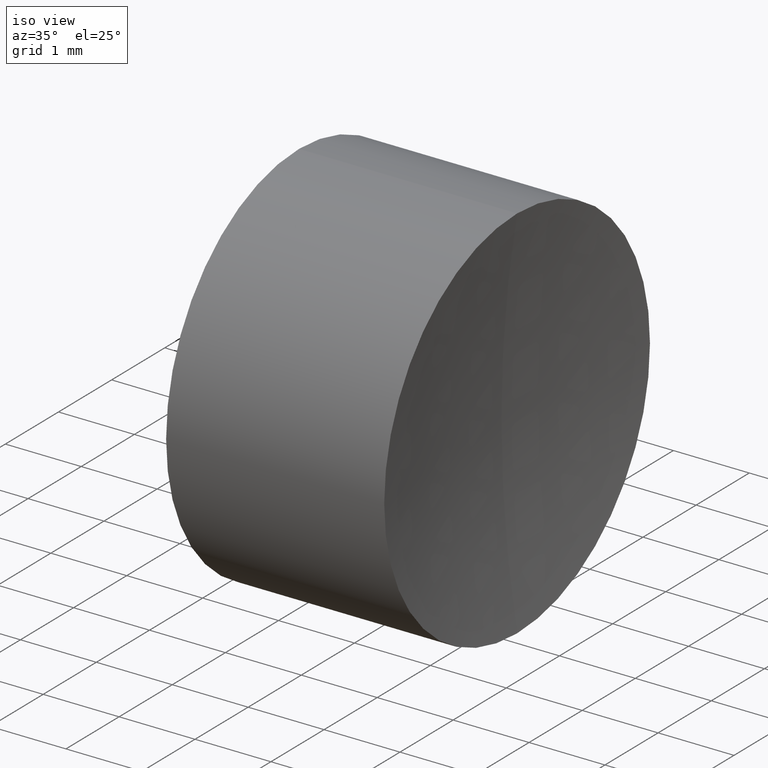
[diagram: clean part render]
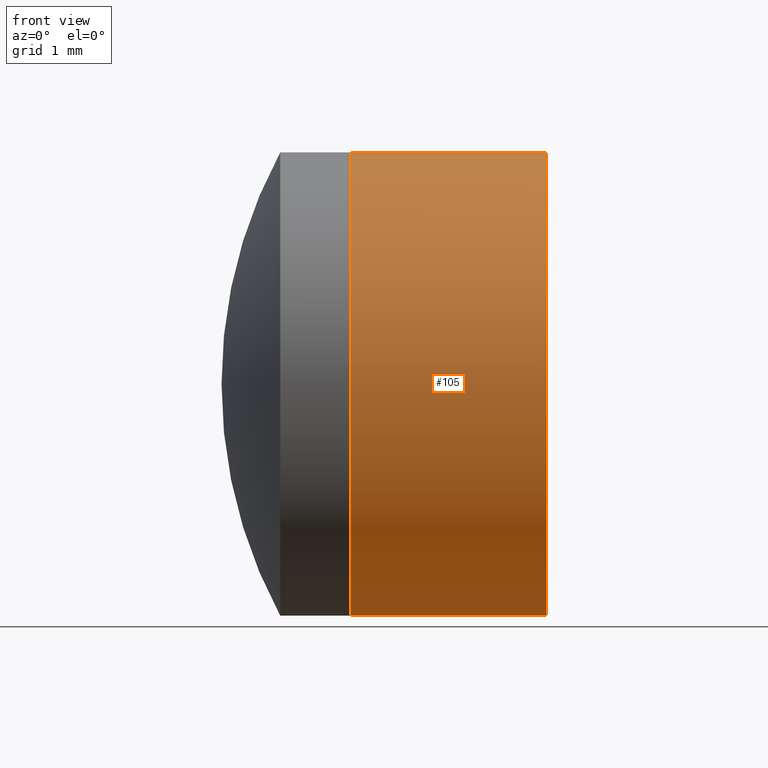
[diagram: tour spotlight — one face highlighted and labeled with its STEP entity id]
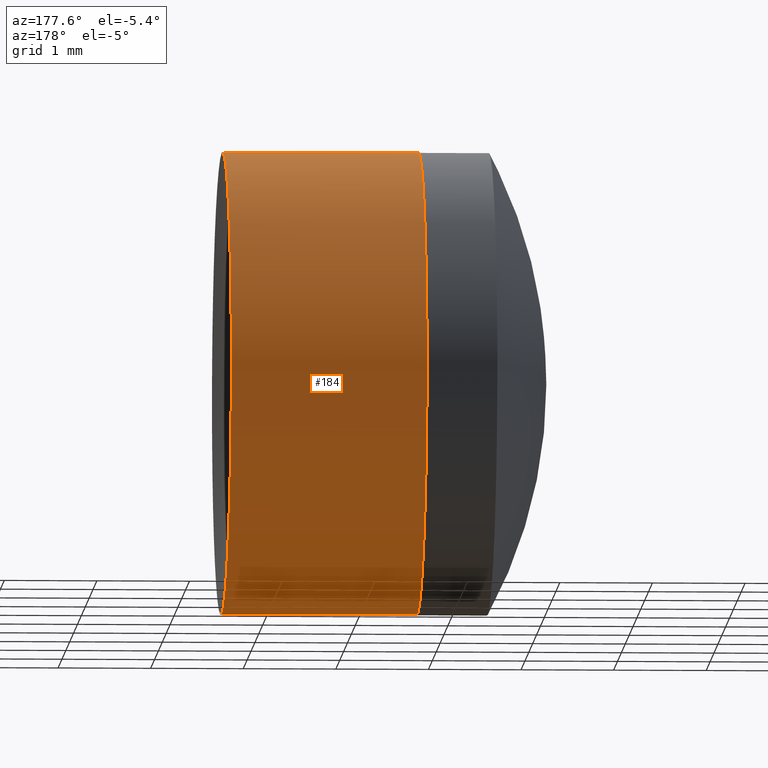
[diagram: tour spotlight — one face highlighted and labeled with its STEP entity id]
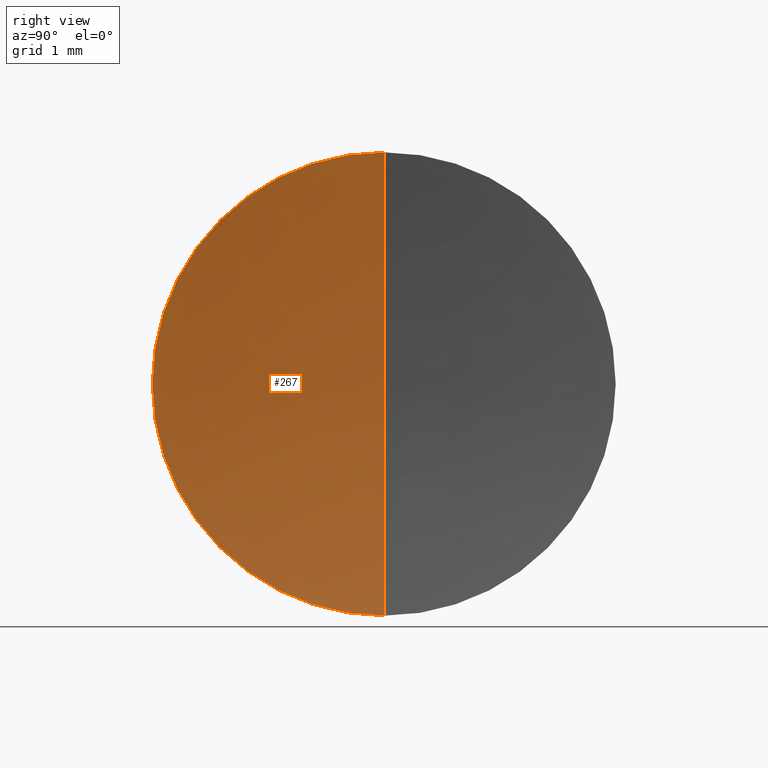
[diagram: tour spotlight — one face highlighted and labeled with its STEP entity id]
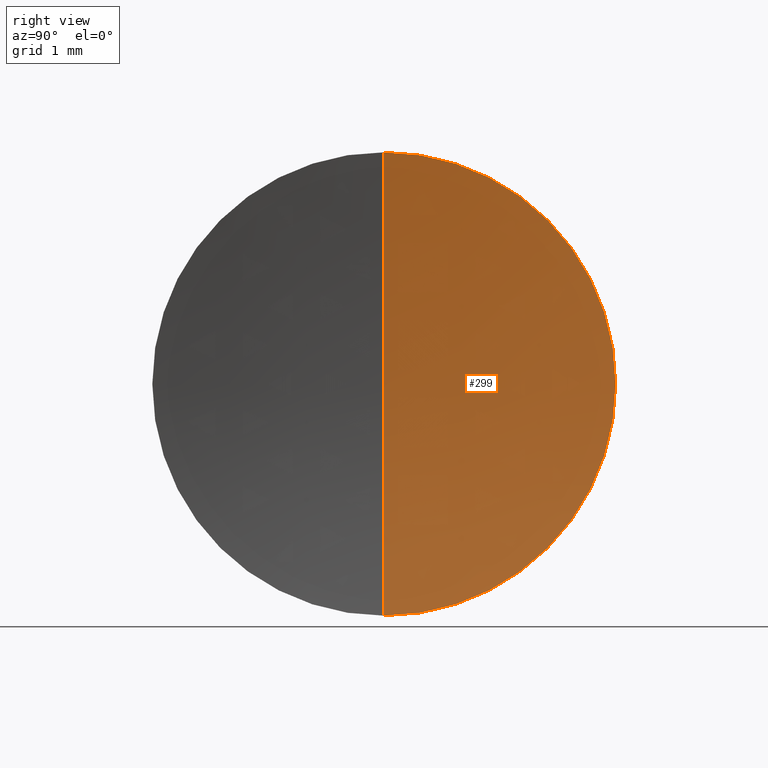
[diagram: tour spotlight — one face highlighted and labeled with its STEP entity id]
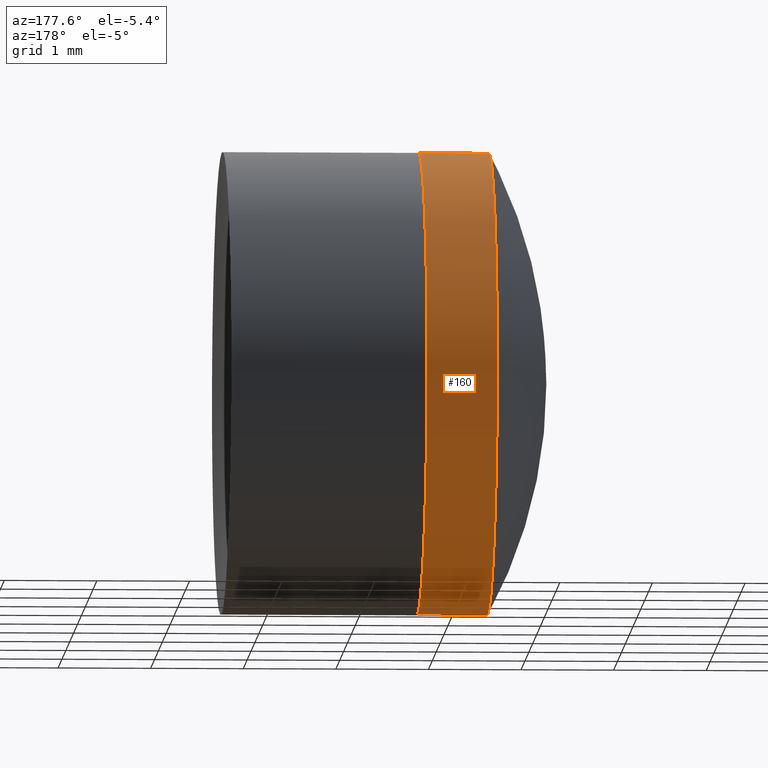
[diagram: tour spotlight — one face highlighted and labeled with its STEP entity id]
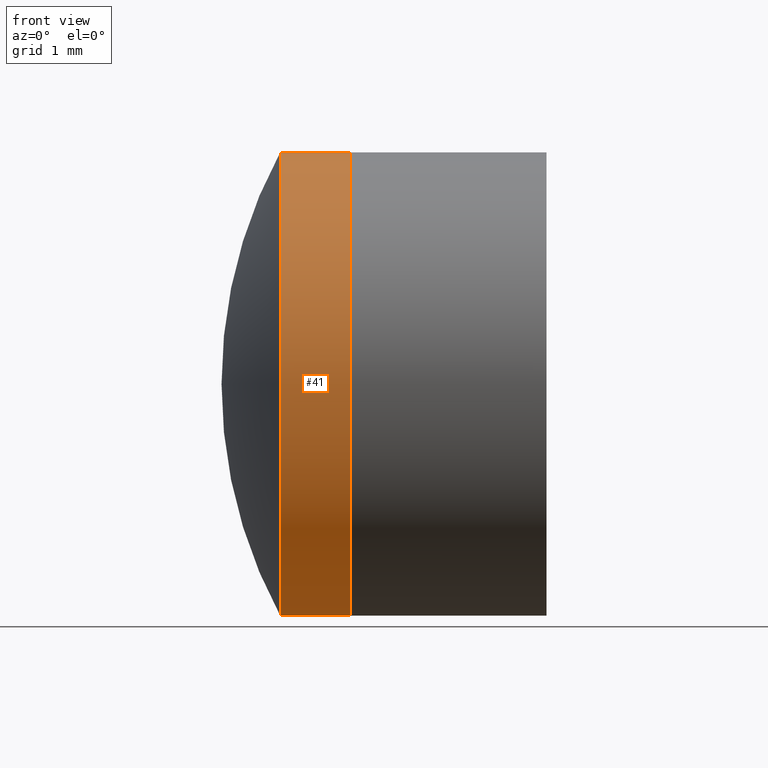
[diagram: tour spotlight — one face highlighted and labeled with its STEP entity id]
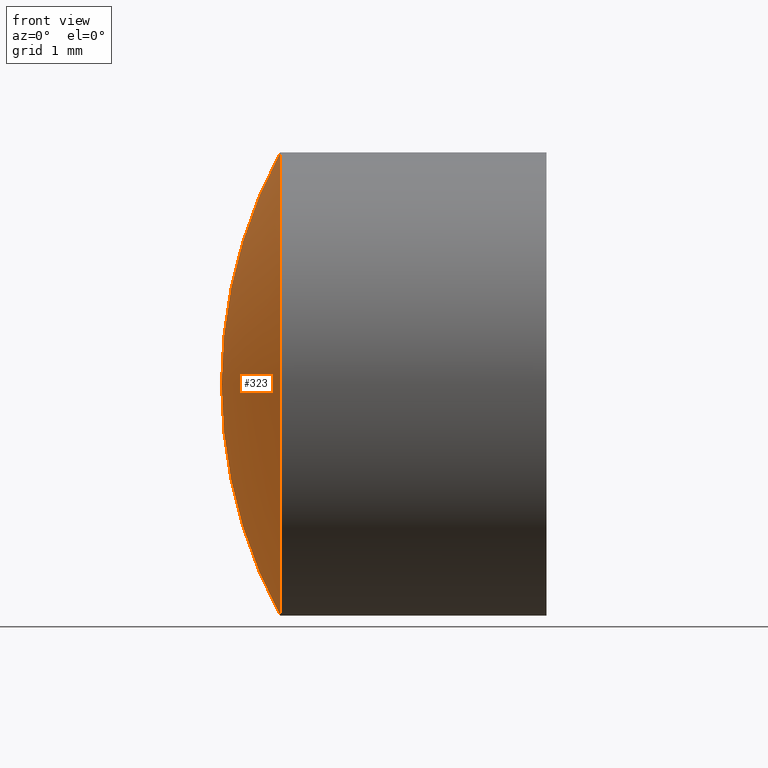
[diagram: tour spotlight — one face highlighted and labeled with its STEP entity id]
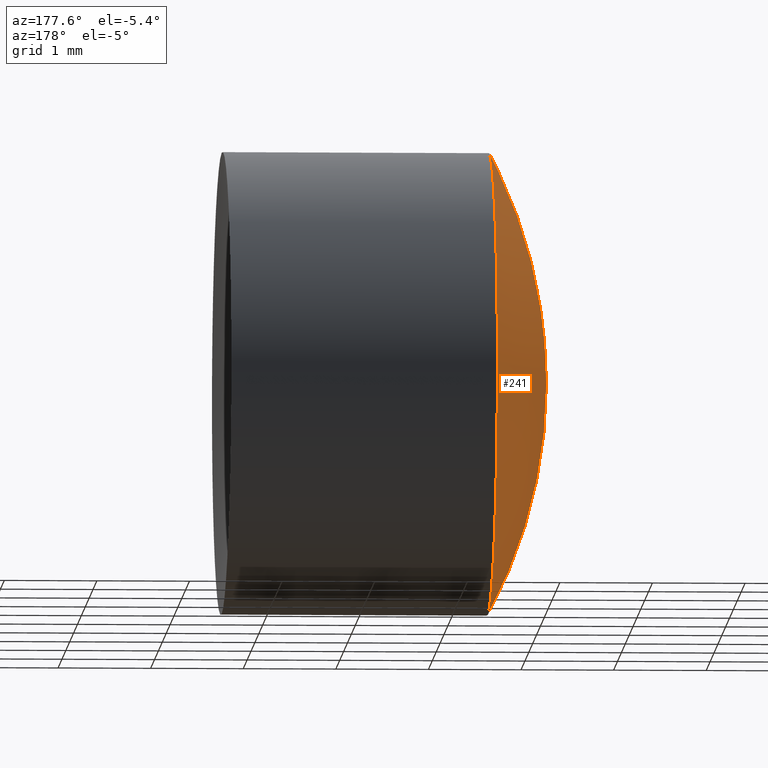
[diagram: tour spotlight — one face highlighted and labeled with its STEP entity id]
A machine part: a face-by-face anatomy tour. The part has 12 B-rep faces; the first image is the clean iso view, then the 8 largest visible faces are spotlighted one at a time (largest first), each with its STEP entity span.

Face 1 — front view, entity #105. In plain terms, the highlighted cylindrical surface (partial cylindrical patch) has radius 2.5 mm, axis along (-1, -0, -0).
Definition (entity closure, byte-faithful):
#1 = ORIENTED_EDGE ( 'NONE', *, *, #223, .F. ) ;
#23 = CARTESIAN_POINT ( 'NONE',  ( 5.442473336270686500, 0.0000000000000000000, -2.499999999999990200 ) ) ;
#25 = VERTEX_POINT ( 'NONE', #301 ) ;
#29 = DIRECTION ( 'NONE',  ( -1.000000000000000000, -0.0000000000000000000, -0.0000000000000000000 ) ) ;
#51 = EDGE_CURVE ( 'NONE', #169, #25, #343, .T. ) ;
#58 = CARTESIAN_POINT ( 'NONE',  ( 3.328800613064654400, 0.0000000000000000000, -2.499999999999997800 ) ) ;
#60 = DIRECTION ( 'NONE',  ( -1.000000000000000000, -0.0000000000000000000, -0.0000000000000000000 ) ) ;
#62 = CARTESIAN_POINT ( 'NONE',  ( -0.5519199926577972300, 0.0000000000000000000, 2.499999999999997800 ) ) ;
#78 = CYLINDRICAL_SURFACE ( 'NONE', #81, 2.499999999999997800 ) ;
#81 = AXIS2_PLACEMENT_3D ( 'NONE', #268, #60, #256 ) ;
#105 = ADVANCED_FACE ( 'NONE', ( #213 ), #78, .T. ) ;
#123 = AXIS2_PLACEMENT_3D ( 'NONE', #336, #148, #316 ) ;
#136 = DIRECTION ( 'NONE',  ( -1.000000000000000000, -0.0000000000000000000, -0.0000000000000000000 ) ) ;
#148 = DIRECTION ( 'NONE',  ( -1.000000000000000000, -0.0000000000000000000, -0.0000000000000000000 ) ) ;
#169 = VERTEX_POINT ( 'NONE', #252 ) ;
#178 = CARTESIAN_POINT ( 'NONE',  ( -0.5519199926577972300, 3.061616997868380700E-016, -2.499999999999997800 ) ) ;
#182 = DIRECTION ( 'NONE',  ( -1.000000000000000000, -0.0000000000000000000, -0.0000000000000000000 ) ) ;
#190 = EDGE_LOOP ( 'NONE', ( #1, #347, #240, #271 ) ) ;
#210 = VECTOR ( 'NONE', #29, 1000.000000000000000 ) ;
#213 = FACE_OUTER_BOUND ( 'NONE', #190, .T. ) ;
#222 = VERTEX_POINT ( 'NONE', #58 ) ;
#223 = EDGE_CURVE ( 'NONE', #308, #222, #325, .T. ) ;
#240 = ORIENTED_EDGE ( 'NONE', *, *, #51, .T. ) ;
#252 = CARTESIAN_POINT ( 'NONE',  ( 5.442473336270686500, -3.061616997868370300E-016, 2.499999999999990200 ) ) ;
#256 = DIRECTION ( 'NONE',  ( 0.0000000000000000000, 0.0000000000000000000, 1.000000000000000000 ) ) ;
#268 = CARTESIAN_POINT ( 'NONE',  ( -0.5519199926577972300, 0.0000000000000000000, 0.0000000000000000000 ) ) ;
#271 = ORIENTED_EDGE ( 'NONE', *, *, #291, .F. ) ;
#272 = CIRCLE ( 'NONE', #123, 2.499999999999998200 ) ;
#286 = CIRCLE ( 'NONE', #324, 2.499999999999997800 ) ;
#291 = EDGE_CURVE ( 'NONE', #222, #25, #286, .T. ) ;
#301 = CARTESIAN_POINT ( 'NONE',  ( 3.328800613064654400, -3.061616997868380700E-016, 2.499999999999997800 ) ) ;
#308 = VERTEX_POINT ( 'NONE', #23 ) ;
#314 = VECTOR ( 'NONE', #182, 1000.000000000000000 ) ;
#316 = DIRECTION ( 'NONE',  ( 0.0000000000000000000, 0.0000000000000000000, 1.000000000000000000 ) ) ;
#324 = AXIS2_PLACEMENT_3D ( 'NONE', #337, #136, #329 ) ;
#325 = LINE ( 'NONE', #178, #210 ) ;
#329 = DIRECTION ( 'NONE',  ( 0.0000000000000000000, 0.0000000000000000000, 1.000000000000000000 ) ) ;
#330 = EDGE_CURVE ( 'NONE', #308, #169, #272, .T. ) ;
#336 = CARTESIAN_POINT ( 'NONE',  ( 5.442473336270686500, 0.0000000000000000000, 0.0000000000000000000 ) ) ;
#337 = CARTESIAN_POINT ( 'NONE',  ( 3.328800613064654400, 0.0000000000000000000, 0.0000000000000000000 ) ) ;
#343 = LINE ( 'NONE', #62, #314 ) ;
#347 = ORIENTED_EDGE ( 'NONE', *, *, #330, .T. ) ;

Face 2 — auxiliary view, entity #184. In plain terms, the highlighted cylindrical surface (partial cylindrical patch) has radius 2.5 mm, axis along (-1, -0, -0).
Definition (entity closure, byte-faithful):
#23 = CARTESIAN_POINT ( 'NONE',  ( 5.442473336270686500, 0.0000000000000000000, -2.499999999999990200 ) ) ;
#25 = VERTEX_POINT ( 'NONE', #301 ) ;
#29 = DIRECTION ( 'NONE',  ( -1.000000000000000000, -0.0000000000000000000, -0.0000000000000000000 ) ) ;
#33 = AXIS2_PLACEMENT_3D ( 'NONE', #173, #282, #68 ) ;
#38 = ORIENTED_EDGE ( 'NONE', *, *, #223, .T. ) ;
#51 = EDGE_CURVE ( 'NONE', #169, #25, #343, .T. ) ;
#58 = CARTESIAN_POINT ( 'NONE',  ( 3.328800613064654400, 0.0000000000000000000, -2.499999999999997800 ) ) ;
#59 = CYLINDRICAL_SURFACE ( 'NONE', #203, 2.499999999999997800 ) ;
#62 = CARTESIAN_POINT ( 'NONE',  ( -0.5519199926577972300, 0.0000000000000000000, 2.499999999999997800 ) ) ;
#68 = DIRECTION ( 'NONE',  ( 0.0000000000000000000, 0.0000000000000000000, 1.000000000000000000 ) ) ;
#71 = FACE_OUTER_BOUND ( 'NONE', #166, .T. ) ;
#134 = CIRCLE ( 'NONE', #224, 2.499999999999998200 ) ;
#142 = DIRECTION ( 'NONE',  ( -1.000000000000000000, -0.0000000000000000000, -0.0000000000000000000 ) ) ;
#143 = DIRECTION ( 'NONE',  ( 0.0000000000000000000, 0.0000000000000000000, 1.000000000000000000 ) ) ;
#144 = CIRCLE ( 'NONE', #33, 2.499999999999997800 ) ;
#146 = CARTESIAN_POINT ( 'NONE',  ( 5.442473336270686500, 0.0000000000000000000, 0.0000000000000000000 ) ) ;
#149 = CARTESIAN_POINT ( 'NONE',  ( -0.5519199926577972300, 0.0000000000000000000, 0.0000000000000000000 ) ) ;
#156 = ORIENTED_EDGE ( 'NONE', *, *, #217, .F. ) ;
#158 = DIRECTION ( 'NONE',  ( 0.0000000000000000000, 0.0000000000000000000, 1.000000000000000000 ) ) ;
#165 = ORIENTED_EDGE ( 'NONE', *, *, #183, .T. ) ;
#166 = EDGE_LOOP ( 'NONE', ( #165, #38, #156, #219 ) ) ;
#169 = VERTEX_POINT ( 'NONE', #252 ) ;
#173 = CARTESIAN_POINT ( 'NONE',  ( 3.328800613064654400, 0.0000000000000000000, 0.0000000000000000000 ) ) ;
#178 = CARTESIAN_POINT ( 'NONE',  ( -0.5519199926577972300, 3.061616997868380700E-016, -2.499999999999997800 ) ) ;
#182 = DIRECTION ( 'NONE',  ( -1.000000000000000000, -0.0000000000000000000, -0.0000000000000000000 ) ) ;
#183 = EDGE_CURVE ( 'NONE', #169, #308, #134, .T. ) ;
#184 = ADVANCED_FACE ( 'NONE', ( #71 ), #59, .T. ) ;
#203 = AXIS2_PLACEMENT_3D ( 'NONE', #149, #284, #158 ) ;
#210 = VECTOR ( 'NONE', #29, 1000.000000000000000 ) ;
#217 = EDGE_CURVE ( 'NONE', #25, #222, #144, .T. ) ;
#219 = ORIENTED_EDGE ( 'NONE', *, *, #51, .F. ) ;
#222 = VERTEX_POINT ( 'NONE', #58 ) ;
#223 = EDGE_CURVE ( 'NONE', #308, #222, #325, .T. ) ;
#224 = AXIS2_PLACEMENT_3D ( 'NONE', #146, #142, #143 ) ;
#252 = CARTESIAN_POINT ( 'NONE',  ( 5.442473336270686500, -3.061616997868370300E-016, 2.499999999999990200 ) ) ;
#282 = DIRECTION ( 'NONE',  ( -1.000000000000000000, -0.0000000000000000000, -0.0000000000000000000 ) ) ;
#284 = DIRECTION ( 'NONE',  ( -1.000000000000000000, -0.0000000000000000000, -0.0000000000000000000 ) ) ;
#301 = CARTESIAN_POINT ( 'NONE',  ( 3.328800613064654400, -3.061616997868380700E-016, 2.499999999999997800 ) ) ;
#308 = VERTEX_POINT ( 'NONE', #23 ) ;
#314 = VECTOR ( 'NONE', #182, 1000.000000000000000 ) ;
#325 = LINE ( 'NONE', #178, #210 ) ;
#343 = LINE ( 'NONE', #62, #314 ) ;

Face 3 — right view, entity #267. In plain terms, the highlighted spherical surface has radius 15.24 mm.
Definition (entity closure, byte-faithful):
#6 = CARTESIAN_POINT ( 'NONE',  ( 20.47602248475854500, 0.0000000000000000000, 0.0000000000000000000 ) ) ;
#19 = DIRECTION ( 'NONE',  ( 0.0000000000000000000, 0.0000000000000000000, -1.000000000000000000 ) ) ;
#23 = CARTESIAN_POINT ( 'NONE',  ( 5.442473336270686500, 0.0000000000000000000, -2.499999999999990200 ) ) ;
#32 = CARTESIAN_POINT ( 'NONE',  ( 20.47602248475854500, 0.0000000000000000000, 0.0000000000000000000 ) ) ;
#40 = DIRECTION ( 'NONE',  ( -0.0000000000000000000, -1.000000000000000000, -0.0000000000000000000 ) ) ;
#57 = EDGE_LOOP ( 'NONE', ( #180, #111, #250 ) ) ;
#79 = EDGE_CURVE ( 'NONE', #169, #86, #305, .T. ) ;
#86 = VERTEX_POINT ( 'NONE', #333 ) ;
#108 = CIRCLE ( 'NONE', #276, 15.23999999999999800 ) ;
#111 = ORIENTED_EDGE ( 'NONE', *, *, #330, .F. ) ;
#123 = AXIS2_PLACEMENT_3D ( 'NONE', #336, #148, #316 ) ;
#148 = DIRECTION ( 'NONE',  ( -1.000000000000000000, -0.0000000000000000000, -0.0000000000000000000 ) ) ;
#159 = DIRECTION ( 'NONE',  ( 0.0000000000000000000, 0.0000000000000000000, 1.000000000000000000 ) ) ;
#161 = CARTESIAN_POINT ( 'NONE',  ( 20.47602248475854500, 0.0000000000000000000, 0.0000000000000000000 ) ) ;
#164 = DIRECTION ( 'NONE',  ( 0.0000000000000000000, 1.000000000000000000, -0.0000000000000000000 ) ) ;
#169 = VERTEX_POINT ( 'NONE', #252 ) ;
#174 = AXIS2_PLACEMENT_3D ( 'NONE', #6, #40, #19 ) ;
#176 = EDGE_CURVE ( 'NONE', #308, #86, #108, .T. ) ;
#180 = ORIENTED_EDGE ( 'NONE', *, *, #79, .F. ) ;
#200 = DIRECTION ( 'NONE',  ( 0.0000000000000000000, 1.224646799147353000E-016, -1.000000000000000000 ) ) ;
#235 = SPHERICAL_SURFACE ( 'NONE', #174, 15.23999999999999800 ) ;
#250 = ORIENTED_EDGE ( 'NONE', *, *, #176, .T. ) ;
#252 = CARTESIAN_POINT ( 'NONE',  ( 5.442473336270686500, -3.061616997868370300E-016, 2.499999999999990200 ) ) ;
#265 = AXIS2_PLACEMENT_3D ( 'NONE', #32, #313, #200 ) ;
#267 = ADVANCED_FACE ( 'NONE', ( #280 ), #235, .F. ) ;
#272 = CIRCLE ( 'NONE', #123, 2.499999999999998200 ) ;
#276 = AXIS2_PLACEMENT_3D ( 'NONE', #161, #164, #159 ) ;
#280 = FACE_OUTER_BOUND ( 'NONE', #57, .T. ) ;
#305 = CIRCLE ( 'NONE', #265, 15.23999999999999800 ) ;
#308 = VERTEX_POINT ( 'NONE', #23 ) ;
#313 = DIRECTION ( 'NONE',  ( 0.0000000000000000000, -1.000000000000000000, -1.224646799147353200E-016 ) ) ;
#316 = DIRECTION ( 'NONE',  ( 0.0000000000000000000, 0.0000000000000000000, 1.000000000000000000 ) ) ;
#330 = EDGE_CURVE ( 'NONE', #308, #169, #272, .T. ) ;
#333 = CARTESIAN_POINT ( 'NONE',  ( 5.236022484758547300, 0.0000000000000000000, -9.331808609502829000E-016 ) ) ;
#336 = CARTESIAN_POINT ( 'NONE',  ( 5.442473336270686500, 0.0000000000000000000, 0.0000000000000000000 ) ) ;

Face 4 — right view, entity #299. In plain terms, the highlighted spherical surface has radius 15.24 mm.
Definition (entity closure, byte-faithful):
#23 = CARTESIAN_POINT ( 'NONE',  ( 5.442473336270686500, 0.0000000000000000000, -2.499999999999990200 ) ) ;
#27 = ORIENTED_EDGE ( 'NONE', *, *, #79, .T. ) ;
#32 = CARTESIAN_POINT ( 'NONE',  ( 20.47602248475854500, 0.0000000000000000000, 0.0000000000000000000 ) ) ;
#52 = ORIENTED_EDGE ( 'NONE', *, *, #176, .F. ) ;
#79 = EDGE_CURVE ( 'NONE', #169, #86, #305, .T. ) ;
#83 = DIRECTION ( 'NONE',  ( 0.0000000000000000000, 0.0000000000000000000, -1.000000000000000000 ) ) ;
#86 = VERTEX_POINT ( 'NONE', #333 ) ;
#108 = CIRCLE ( 'NONE', #276, 15.23999999999999800 ) ;
#115 = AXIS2_PLACEMENT_3D ( 'NONE', #239, #249, #83 ) ;
#134 = CIRCLE ( 'NONE', #224, 2.499999999999998200 ) ;
#142 = DIRECTION ( 'NONE',  ( -1.000000000000000000, -0.0000000000000000000, -0.0000000000000000000 ) ) ;
#143 = DIRECTION ( 'NONE',  ( 0.0000000000000000000, 0.0000000000000000000, 1.000000000000000000 ) ) ;
#146 = CARTESIAN_POINT ( 'NONE',  ( 5.442473336270686500, 0.0000000000000000000, 0.0000000000000000000 ) ) ;
#159 = DIRECTION ( 'NONE',  ( 0.0000000000000000000, 0.0000000000000000000, 1.000000000000000000 ) ) ;
#161 = CARTESIAN_POINT ( 'NONE',  ( 20.47602248475854500, 0.0000000000000000000, 0.0000000000000000000 ) ) ;
#164 = DIRECTION ( 'NONE',  ( 0.0000000000000000000, 1.000000000000000000, -0.0000000000000000000 ) ) ;
#169 = VERTEX_POINT ( 'NONE', #252 ) ;
#176 = EDGE_CURVE ( 'NONE', #308, #86, #108, .T. ) ;
#183 = EDGE_CURVE ( 'NONE', #169, #308, #134, .T. ) ;
#200 = DIRECTION ( 'NONE',  ( 0.0000000000000000000, 1.224646799147353000E-016, -1.000000000000000000 ) ) ;
#224 = AXIS2_PLACEMENT_3D ( 'NONE', #146, #142, #143 ) ;
#239 = CARTESIAN_POINT ( 'NONE',  ( 20.47602248475854500, 0.0000000000000000000, 0.0000000000000000000 ) ) ;
#249 = DIRECTION ( 'NONE',  ( -0.0000000000000000000, -1.000000000000000000, -0.0000000000000000000 ) ) ;
#252 = CARTESIAN_POINT ( 'NONE',  ( 5.442473336270686500, -3.061616997868370300E-016, 2.499999999999990200 ) ) ;
#265 = AXIS2_PLACEMENT_3D ( 'NONE', #32, #313, #200 ) ;
#276 = AXIS2_PLACEMENT_3D ( 'NONE', #161, #164, #159 ) ;
#299 = ADVANCED_FACE ( 'NONE', ( #340 ), #345, .F. ) ;
#303 = ORIENTED_EDGE ( 'NONE', *, *, #183, .F. ) ;
#305 = CIRCLE ( 'NONE', #265, 15.23999999999999800 ) ;
#308 = VERTEX_POINT ( 'NONE', #23 ) ;
#313 = DIRECTION ( 'NONE',  ( 0.0000000000000000000, -1.000000000000000000, -1.224646799147353200E-016 ) ) ;
#333 = CARTESIAN_POINT ( 'NONE',  ( 5.236022484758547300, 0.0000000000000000000, -9.331808609502829000E-016 ) ) ;
#340 = FACE_OUTER_BOUND ( 'NONE', #346, .T. ) ;
#345 = SPHERICAL_SURFACE ( 'NONE', #115, 15.23999999999999800 ) ;
#346 = EDGE_LOOP ( 'NONE', ( #303, #27, #52 ) ) ;

Face 5 — auxiliary view, entity #160. In plain terms, the highlighted cylindrical surface (partial cylindrical patch) has radius 2.5 mm, axis along (-1, -0, -0).
Definition (entity closure, byte-faithful):
#2 = EDGE_CURVE ( 'NONE', #73, #293, #130, .T. ) ;
#3 = CYLINDRICAL_SURFACE ( 'NONE', #247, 2.500000000000000000 ) ;
#5 = EDGE_LOOP ( 'NONE', ( #278, #67, #94, #84 ) ) ;
#16 = FACE_OUTER_BOUND ( 'NONE', #5, .T. ) ;
#22 = AXIS2_PLACEMENT_3D ( 'NONE', #93, #66, #188 ) ;
#36 = CARTESIAN_POINT ( 'NONE',  ( 2.569476156603698800, 0.0000000000000000000, 2.500000000000000400 ) ) ;
#53 = CARTESIAN_POINT ( 'NONE',  ( 2.569476156603698800, 3.061616997868383100E-016, -2.500000000000000400 ) ) ;
#65 = DIRECTION ( 'NONE',  ( -1.000000000000000000, -0.0000000000000000000, -0.0000000000000000000 ) ) ;
#66 = DIRECTION ( 'NONE',  ( -1.000000000000000000, -0.0000000000000000000, -0.0000000000000000000 ) ) ;
#67 = ORIENTED_EDGE ( 'NONE', *, *, #2, .T. ) ;
#69 = CARTESIAN_POINT ( 'NONE',  ( 3.328800613064653900, 3.061616997868383100E-016, -2.500000000000000000 ) ) ;
#72 = AXIS2_PLACEMENT_3D ( 'NONE', #261, #65, #238 ) ;
#73 = VERTEX_POINT ( 'NONE', #69 ) ;
#75 = EDGE_CURVE ( 'NONE', #327, #293, #80, .T. ) ;
#80 = CIRCLE ( 'NONE', #22, 2.500000000000000000 ) ;
#84 = ORIENTED_EDGE ( 'NONE', *, *, #309, .F. ) ;
#93 = CARTESIAN_POINT ( 'NONE',  ( 2.569476156603698800, 0.0000000000000000000, 0.0000000000000000000 ) ) ;
#94 = ORIENTED_EDGE ( 'NONE', *, *, #75, .F. ) ;
#112 = VECTOR ( 'NONE', #154, 1000.000000000000000 ) ;
#130 = LINE ( 'NONE', #211, #277 ) ;
#154 = DIRECTION ( 'NONE',  ( -1.000000000000000000, -0.0000000000000000000, -0.0000000000000000000 ) ) ;
#155 = DIRECTION ( 'NONE',  ( -1.000000000000000000, -0.0000000000000000000, -0.0000000000000000000 ) ) ;
#160 = ADVANCED_FACE ( 'NONE', ( #16 ), #3, .T. ) ;
#188 = DIRECTION ( 'NONE',  ( 0.0000000000000000000, 0.0000000000000000000, 1.000000000000000000 ) ) ;
#191 = LINE ( 'NONE', #195, #112 ) ;
#195 = CARTESIAN_POINT ( 'NONE',  ( -0.8160621761658039000, 0.0000000000000000000, 2.500000000000000000 ) ) ;
#211 = CARTESIAN_POINT ( 'NONE',  ( -0.8160621761658039000, 3.061616997868383100E-016, -2.500000000000000000 ) ) ;
#229 = DIRECTION ( 'NONE',  ( -1.000000000000000000, -0.0000000000000000000, -0.0000000000000000000 ) ) ;
#238 = DIRECTION ( 'NONE',  ( 0.0000000000000000000, 0.0000000000000000000, 1.000000000000000000 ) ) ;
#247 = AXIS2_PLACEMENT_3D ( 'NONE', #289, #229, #260 ) ;
#255 = CIRCLE ( 'NONE', #72, 2.500000000000000000 ) ;
#260 = DIRECTION ( 'NONE',  ( 0.0000000000000000000, 0.0000000000000000000, 1.000000000000000000 ) ) ;
#261 = CARTESIAN_POINT ( 'NONE',  ( 3.328800613064653900, 0.0000000000000000000, 0.0000000000000000000 ) ) ;
#263 = CARTESIAN_POINT ( 'NONE',  ( 3.328800613064653900, 0.0000000000000000000, 2.500000000000000000 ) ) ;
#277 = VECTOR ( 'NONE', #155, 1000.000000000000000 ) ;
#278 = ORIENTED_EDGE ( 'NONE', *, *, #300, .T. ) ;
#283 = VERTEX_POINT ( 'NONE', #263 ) ;
#289 = CARTESIAN_POINT ( 'NONE',  ( -0.8160621761658039000, 0.0000000000000000000, 0.0000000000000000000 ) ) ;
#293 = VERTEX_POINT ( 'NONE', #53 ) ;
#300 = EDGE_CURVE ( 'NONE', #283, #73, #255, .T. ) ;
#309 = EDGE_CURVE ( 'NONE', #283, #327, #191, .T. ) ;
#327 = VERTEX_POINT ( 'NONE', #36 ) ;

Face 6 — front view, entity #41. In plain terms, the highlighted cylindrical surface (partial cylindrical patch) has radius 2.5 mm, axis along (-1, -0, -0).
Definition (entity closure, byte-faithful):
#2 = EDGE_CURVE ( 'NONE', #73, #293, #130, .T. ) ;
#13 = CYLINDRICAL_SURFACE ( 'NONE', #331, 2.500000000000000000 ) ;
#15 = CARTESIAN_POINT ( 'NONE',  ( 2.569476156603698800, 0.0000000000000000000, 0.0000000000000000000 ) ) ;
#36 = CARTESIAN_POINT ( 'NONE',  ( 2.569476156603698800, 0.0000000000000000000, 2.500000000000000400 ) ) ;
#41 = ADVANCED_FACE ( 'NONE', ( #77 ), #13, .T. ) ;
#53 = CARTESIAN_POINT ( 'NONE',  ( 2.569476156603698800, 3.061616997868383100E-016, -2.500000000000000400 ) ) ;
#69 = CARTESIAN_POINT ( 'NONE',  ( 3.328800613064653900, 3.061616997868383100E-016, -2.500000000000000000 ) ) ;
#73 = VERTEX_POINT ( 'NONE', #69 ) ;
#77 = FACE_OUTER_BOUND ( 'NONE', #332, .T. ) ;
#99 = ORIENTED_EDGE ( 'NONE', *, *, #192, .T. ) ;
#112 = VECTOR ( 'NONE', #154, 1000.000000000000000 ) ;
#114 = DIRECTION ( 'NONE',  ( 0.0000000000000000000, 0.0000000000000000000, 1.000000000000000000 ) ) ;
#120 = CARTESIAN_POINT ( 'NONE',  ( 3.328800613064653900, 0.0000000000000000000, 0.0000000000000000000 ) ) ;
#122 = DIRECTION ( 'NONE',  ( -1.000000000000000000, -0.0000000000000000000, -0.0000000000000000000 ) ) ;
#130 = LINE ( 'NONE', #211, #277 ) ;
#150 = DIRECTION ( 'NONE',  ( 0.0000000000000000000, 0.0000000000000000000, 1.000000000000000000 ) ) ;
#154 = DIRECTION ( 'NONE',  ( -1.000000000000000000, -0.0000000000000000000, -0.0000000000000000000 ) ) ;
#155 = DIRECTION ( 'NONE',  ( -1.000000000000000000, -0.0000000000000000000, -0.0000000000000000000 ) ) ;
#177 = DIRECTION ( 'NONE',  ( -1.000000000000000000, -0.0000000000000000000, -0.0000000000000000000 ) ) ;
#191 = LINE ( 'NONE', #195, #112 ) ;
#192 = EDGE_CURVE ( 'NONE', #73, #283, #335, .T. ) ;
#195 = CARTESIAN_POINT ( 'NONE',  ( -0.8160621761658039000, 0.0000000000000000000, 2.500000000000000000 ) ) ;
#196 = ORIENTED_EDGE ( 'NONE', *, *, #326, .F. ) ;
#207 = ORIENTED_EDGE ( 'NONE', *, *, #309, .T. ) ;
#211 = CARTESIAN_POINT ( 'NONE',  ( -0.8160621761658039000, 3.061616997868383100E-016, -2.500000000000000000 ) ) ;
#216 = CIRCLE ( 'NONE', #318, 2.500000000000000000 ) ;
#230 = AXIS2_PLACEMENT_3D ( 'NONE', #120, #122, #114 ) ;
#231 = DIRECTION ( 'NONE',  ( 0.0000000000000000000, 0.0000000000000000000, 1.000000000000000000 ) ) ;
#263 = CARTESIAN_POINT ( 'NONE',  ( 3.328800613064653900, 0.0000000000000000000, 2.500000000000000000 ) ) ;
#277 = VECTOR ( 'NONE', #155, 1000.000000000000000 ) ;
#283 = VERTEX_POINT ( 'NONE', #263 ) ;
#292 = DIRECTION ( 'NONE',  ( -1.000000000000000000, -0.0000000000000000000, -0.0000000000000000000 ) ) ;
#293 = VERTEX_POINT ( 'NONE', #53 ) ;
#296 = CARTESIAN_POINT ( 'NONE',  ( -0.8160621761658039000, 0.0000000000000000000, 0.0000000000000000000 ) ) ;
#298 = ORIENTED_EDGE ( 'NONE', *, *, #2, .F. ) ;
#309 = EDGE_CURVE ( 'NONE', #283, #327, #191, .T. ) ;
#318 = AXIS2_PLACEMENT_3D ( 'NONE', #15, #177, #150 ) ;
#326 = EDGE_CURVE ( 'NONE', #293, #327, #216, .T. ) ;
#327 = VERTEX_POINT ( 'NONE', #36 ) ;
#331 = AXIS2_PLACEMENT_3D ( 'NONE', #296, #292, #231 ) ;
#332 = EDGE_LOOP ( 'NONE', ( #298, #99, #207, #196 ) ) ;
#335 = CIRCLE ( 'NONE', #230, 2.500000000000000000 ) ;

Face 7 — front view, entity #323. In plain terms, the highlighted spherical surface has radius 5.25 mm.
Definition (entity closure, byte-faithful):
#8 = CARTESIAN_POINT ( 'NONE',  ( 7.186022484758546500, 0.0000000000000000000, -6.335624873417847600E-017 ) ) ;
#10 = DIRECTION ( 'NONE',  ( 0.0000000000000000000, -1.000000000000000000, 0.0000000000000000000 ) ) ;
#12 = DIRECTION ( 'NONE',  ( 0.0000000000000000000, 0.0000000000000000000, -1.000000000000000000 ) ) ;
#15 = CARTESIAN_POINT ( 'NONE',  ( 2.569476156603698800, 0.0000000000000000000, 0.0000000000000000000 ) ) ;
#20 = EDGE_CURVE ( 'NONE', #293, #132, #168, .T. ) ;
#36 = CARTESIAN_POINT ( 'NONE',  ( 2.569476156603698800, 0.0000000000000000000, 2.500000000000000400 ) ) ;
#43 = AXIS2_PLACEMENT_3D ( 'NONE', #208, #294, #97 ) ;
#45 = CIRCLE ( 'NONE', #220, 5.250000000000000900 ) ;
#53 = CARTESIAN_POINT ( 'NONE',  ( 2.569476156603698800, 3.061616997868383100E-016, -2.500000000000000400 ) ) ;
#63 = CARTESIAN_POINT ( 'NONE',  ( 7.186022484758546500, 0.0000000000000000000, -6.335624873417847600E-017 ) ) ;
#96 = DIRECTION ( 'NONE',  ( -0.0000000000000000000, 1.000000000000000000, 1.224646799147353200E-016 ) ) ;
#97 = DIRECTION ( 'NONE',  ( 0.0000000000000000000, 0.0000000000000000000, 1.000000000000000000 ) ) ;
#132 = VERTEX_POINT ( 'NONE', #170 ) ;
#133 = ORIENTED_EDGE ( 'NONE', *, *, #20, .F. ) ;
#135 = ORIENTED_EDGE ( 'NONE', *, *, #326, .T. ) ;
#150 = DIRECTION ( 'NONE',  ( 0.0000000000000000000, 0.0000000000000000000, 1.000000000000000000 ) ) ;
#168 = CIRCLE ( 'NONE', #270, 5.250000000000000900 ) ;
#170 = CARTESIAN_POINT ( 'NONE',  ( 1.936022484758545700, 0.0000000000000000000, 2.581135360420018100E-016 ) ) ;
#177 = DIRECTION ( 'NONE',  ( -1.000000000000000000, -0.0000000000000000000, -0.0000000000000000000 ) ) ;
#206 = DIRECTION ( 'NONE',  ( 0.0000000000000000000, -1.224646799147353200E-016, 1.000000000000000000 ) ) ;
#208 = CARTESIAN_POINT ( 'NONE',  ( 7.186022484758546500, 0.0000000000000000000, -6.335624873417847600E-017 ) ) ;
#216 = CIRCLE ( 'NONE', #318, 2.500000000000000000 ) ;
#220 = AXIS2_PLACEMENT_3D ( 'NONE', #8, #10, #12 ) ;
#248 = EDGE_CURVE ( 'NONE', #327, #132, #45, .T. ) ;
#251 = EDGE_LOOP ( 'NONE', ( #133, #135, #297 ) ) ;
#264 = FACE_OUTER_BOUND ( 'NONE', #251, .T. ) ;
#270 = AXIS2_PLACEMENT_3D ( 'NONE', #63, #96, #206 ) ;
#273 = SPHERICAL_SURFACE ( 'NONE', #43, 5.250000000000000900 ) ;
#293 = VERTEX_POINT ( 'NONE', #53 ) ;
#294 = DIRECTION ( 'NONE',  ( 0.0000000000000000000, 1.000000000000000000, 0.0000000000000000000 ) ) ;
#297 = ORIENTED_EDGE ( 'NONE', *, *, #248, .T. ) ;
#318 = AXIS2_PLACEMENT_3D ( 'NONE', #15, #177, #150 ) ;
#323 = ADVANCED_FACE ( 'NONE', ( #264 ), #273, .T. ) ;
#326 = EDGE_CURVE ( 'NONE', #293, #327, #216, .T. ) ;
#327 = VERTEX_POINT ( 'NONE', #36 ) ;

Face 8 — auxiliary view, entity #241. In plain terms, the highlighted spherical surface has radius 5.25 mm.
Definition (entity closure, byte-faithful):
#8 = CARTESIAN_POINT ( 'NONE',  ( 7.186022484758546500, 0.0000000000000000000, -6.335624873417847600E-017 ) ) ;
#10 = DIRECTION ( 'NONE',  ( 0.0000000000000000000, -1.000000000000000000, 0.0000000000000000000 ) ) ;
#12 = DIRECTION ( 'NONE',  ( 0.0000000000000000000, 0.0000000000000000000, -1.000000000000000000 ) ) ;
#20 = EDGE_CURVE ( 'NONE', #293, #132, #168, .T. ) ;
#22 = AXIS2_PLACEMENT_3D ( 'NONE', #93, #66, #188 ) ;
#30 = CARTESIAN_POINT ( 'NONE',  ( 7.186022484758546500, 0.0000000000000000000, -6.335624873417847600E-017 ) ) ;
#36 = CARTESIAN_POINT ( 'NONE',  ( 2.569476156603698800, 0.0000000000000000000, 2.500000000000000400 ) ) ;
#42 = DIRECTION ( 'NONE',  ( 0.0000000000000000000, 0.0000000000000000000, 1.000000000000000000 ) ) ;
#45 = CIRCLE ( 'NONE', #220, 5.250000000000000900 ) ;
#53 = CARTESIAN_POINT ( 'NONE',  ( 2.569476156603698800, 3.061616997868383100E-016, -2.500000000000000400 ) ) ;
#55 = DIRECTION ( 'NONE',  ( 0.0000000000000000000, 1.000000000000000000, 0.0000000000000000000 ) ) ;
#63 = CARTESIAN_POINT ( 'NONE',  ( 7.186022484758546500, 0.0000000000000000000, -6.335624873417847600E-017 ) ) ;
#64 = FACE_OUTER_BOUND ( 'NONE', #101, .T. ) ;
#66 = DIRECTION ( 'NONE',  ( -1.000000000000000000, -0.0000000000000000000, -0.0000000000000000000 ) ) ;
#75 = EDGE_CURVE ( 'NONE', #327, #293, #80, .T. ) ;
#80 = CIRCLE ( 'NONE', #22, 2.500000000000000000 ) ;
#93 = CARTESIAN_POINT ( 'NONE',  ( 2.569476156603698800, 0.0000000000000000000, 0.0000000000000000000 ) ) ;
#96 = DIRECTION ( 'NONE',  ( -0.0000000000000000000, 1.000000000000000000, 1.224646799147353200E-016 ) ) ;
#101 = EDGE_LOOP ( 'NONE', ( #254, #110, #199 ) ) ;
#110 = ORIENTED_EDGE ( 'NONE', *, *, #20, .T. ) ;
#113 = AXIS2_PLACEMENT_3D ( 'NONE', #30, #55, #42 ) ;
#132 = VERTEX_POINT ( 'NONE', #170 ) ;
#168 = CIRCLE ( 'NONE', #270, 5.250000000000000900 ) ;
#170 = CARTESIAN_POINT ( 'NONE',  ( 1.936022484758545700, 0.0000000000000000000, 2.581135360420018100E-016 ) ) ;
#188 = DIRECTION ( 'NONE',  ( 0.0000000000000000000, 0.0000000000000000000, 1.000000000000000000 ) ) ;
#199 = ORIENTED_EDGE ( 'NONE', *, *, #248, .F. ) ;
#206 = DIRECTION ( 'NONE',  ( 0.0000000000000000000, -1.224646799147353200E-016, 1.000000000000000000 ) ) ;
#220 = AXIS2_PLACEMENT_3D ( 'NONE', #8, #10, #12 ) ;
#226 = SPHERICAL_SURFACE ( 'NONE', #113, 5.250000000000000900 ) ;
#241 = ADVANCED_FACE ( 'NONE', ( #64 ), #226, .T. ) ;
#248 = EDGE_CURVE ( 'NONE', #327, #132, #45, .T. ) ;
#254 = ORIENTED_EDGE ( 'NONE', *, *, #75, .T. ) ;
#270 = AXIS2_PLACEMENT_3D ( 'NONE', #63, #96, #206 ) ;
#293 = VERTEX_POINT ( 'NONE', #53 ) ;
#327 = VERTEX_POINT ( 'NONE', #36 ) ;